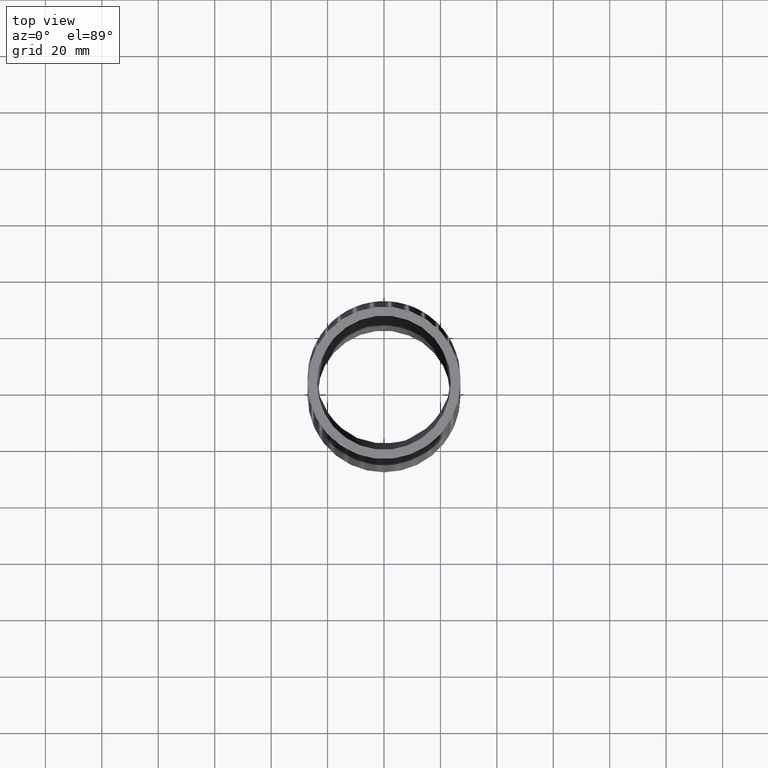
[diagram: clean part render]
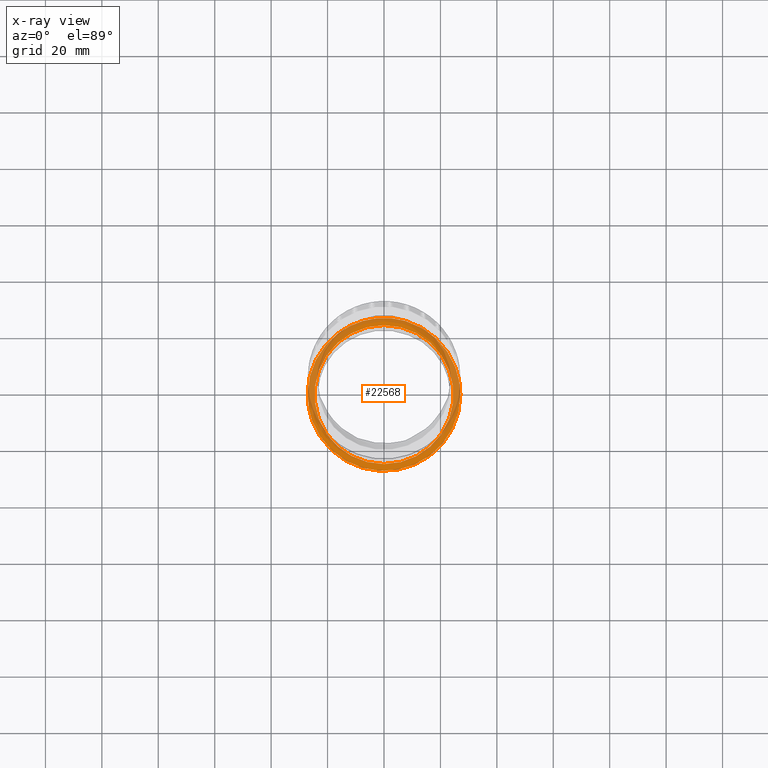
[diagram: x-ray — body ghosted, one internal face saturated and labeled with its STEP entity id]
A machine part, top view, then the same camera in x-ray: the body is ghosted and one INTERNAL B-rep face — a face not visible from any outside direction — is saturated and labeled: STEP entity #22568.
In plain terms, the highlighted planar face has unit normal (0, -0, 1).
Its self-contained STEP definition (entity closure, byte-faithful):
#1661 = B_SPLINE_CURVE_WITH_KNOTS ( 'NONE', 3,
 ( #1715, #1713, #1712, #1711, #1710, #1709, #1708, #1707, #1706, #1705, #1704, #1702, #1700, #1699, #1698, #1697, #1695, #1694, #1693, #1692, #1691, #1690, #1689, #1688, #1687, #1685 ),
 .UNSPECIFIED., .F., .F.,
 ( 4, 2, 2, 2, 2, 2, 2, 2, 2, 2, 2, 2, 4 ),
 ( 0.1345937247587071800, 0.1367667806220763400, 0.1389398364854454700, 0.1432859482121837900, 0.1454590040755529300, 0.1476320599389220900, 0.1519781716656603800, 0.1541512275290295200, 0.1563242833923986800, 0.1606703951191369400, 0.1628434509825061000, 0.1650165068458752400, 0.1693626185726135300 ),
 .UNSPECIFIED. ) ;
#1662 = CARTESIAN_POINT ( 'NONE',  ( 0.2942021162830115200, 1.023881841711950600, -9.262714008612654500 ) ) ;
#1685 = CARTESIAN_POINT ( 'NONE',  ( 1.065000000000000200, -0.002456861999197953000, -9.262714008612656300 ) ) ;
#1687 = CARTESIAN_POINT ( 'NONE',  ( 1.064999999999999300, 0.05539908746670275900, -9.262714008612674000 ) ) ;
#1688 = CARTESIAN_POINT ( 'NONE',  ( 1.060342751581643300, 0.1127639391957773600, -9.262714008612658000 ) ) ;
#1689 = CARTESIAN_POINT ( 'NONE',  ( 1.046451226837835400, 0.1980818997603101300, -9.262714008612656300 ) ) ;
#1690 = CARTESIAN_POINT ( 'NONE',  ( 1.040635323112068200, 0.2264989185426697400, -9.262714008612652700 ) ) ;
#1691 = CARTESIAN_POINT ( 'NONE',  ( 1.026822309547759300, 0.2823909090176692200, -9.262714008612656300 ) ) ;
#1692 = CARTESIAN_POINT ( 'NONE',  ( 1.018828454095150900, 0.3099044290535125600, -9.262714008612658000 ) ) ;
#1693 = CARTESIAN_POINT ( 'NONE',  ( 0.9916585098094383700, 0.3911768638349290000, -9.262714008612659800 ) ) ;
#1694 = CARTESIAN_POINT ( 'NONE',  ( 0.9693142940294945400, 0.4436757077518556100, -9.262714008612654500 ) ) ;
#1695 = CARTESIAN_POINT ( 'NONE',  ( 0.9293705993274212800, 0.5198675916140214100, -9.262714008612654500 ) ) ;
#1697 = CARTESIAN_POINT ( 'NONE',  ( 0.9149175160717117900, 0.5449327526267597800, -9.262714008612652700 ) ) ;
#1698 = CARTESIAN_POINT ( 'NONE',  ( 0.8840846455784061600, 0.5937041760904674400, -9.262714008612654500 ) ) ;
#1699 = CARTESIAN_POINT ( 'NONE',  ( 0.8677770295423946600, 0.6173160520611540300, -9.262714008612654500 ) ) ;
#1700 = CARTESIAN_POINT ( 'NONE',  ( 0.8162501487881249600, 0.6858905298127082600, -9.262714008612658000 ) ) ;
#1702 = CARTESIAN_POINT ( 'NONE',  ( 0.7784432471744107100, 0.7286062182954792200, -9.262714008612661600 ) ) ;
#1704 = CARTESIAN_POINT ( 'NONE',  ( 0.7165185169770069700, 0.7881519694021205100, -9.262714008612663400 ) ) ;
#1705 = CARTESIAN_POINT ( 'NONE',  ( 0.6949848738317168100, 0.8072578079710734900, -9.262714008612652700 ) ) ;
#1706 = CARTESIAN_POINT ( 'NONE',  ( 0.6501912301130023900, 0.8438397888233282200, -9.262714008612654500 ) ) ;
#1707 = CARTESIAN_POINT ( 'NONE',  ( 0.6272033438012178900, 0.8610962731117923800, -9.262714008612649200 ) ) ;
#1708 = CARTESIAN_POINT ( 'NONE',  ( 0.5565189076162809800, 0.9098539484646933600, -9.262714008612647400 ) ) ;
#1709 = CARTESIAN_POINT ( 'NONE',  ( 0.5071123457644635100, 0.9383622038515624400, -9.262714008612656300 ) ) ;
#1710 = CARTESIAN_POINT ( 'NONE',  ( 0.4295805629375034100, 0.9751353619512146400, -9.262714008612659800 ) ) ;
#1711 = CARTESIAN_POINT ( 'NONE',  ( 0.4031636175787708900, 0.9863901612865091400, -9.262714008612647400 ) ) ;
#1712 = CARTESIAN_POINT ( 'NONE',  ( 0.3491500197061444500, 1.006834986331055500, -9.262714008612649200 ) ) ;
#1713 = CARTESIAN_POINT ( 'NONE',  ( 0.3217402974460824000, 1.015946003062057300, -9.262714008612652700 ) ) ;
#1715 = CARTESIAN_POINT ( 'NONE',  ( 0.2942021162830115200, 1.023881841711950600, -9.262714008612654500 ) ) ;
#2029 = CARTESIAN_POINT ( 'NONE',  ( -1.065000000000000200, -0.002456861999197820700, -9.262714008612656300 ) ) ;
#2031 = B_SPLINE_CURVE_WITH_KNOTS ( 'NONE', 3,
 ( #2029, #2081, #2080, #2079, #2078, #2077, #2076, #2075, #2074, #2073, #2072, #2071, #2070, #2069, #2068, #2067, #2066, #2065, #2064, #2063, #2062, #2061, #2060, #2059, #2058, #2057 ),
 .UNSPECIFIED., .F., .F.,
 ( 4, 2, 2, 2, 2, 2, 2, 2, 2, 2, 2, 2, 4 ),
 ( 0.08469472598437159700, 0.08904628690213177400, 0.09122206736101186300, 0.09339784781989195200, 0.09774940873765213000, 0.09992518919653223300, 0.1021009696554123200, 0.1064525305731725000, 0.1086283110320525900, 0.1108040914909326800, 0.1151556524086928500, 0.1173314328675729400, 0.1195072133264530500 ),
 .UNSPECIFIED. ) ;
#2036 = CARTESIAN_POINT ( 'NONE',  ( -0.2942021162829624400, 1.023881841711964800, -9.262714008612654500 ) ) ;
#2042 = CARTESIAN_POINT ( 'NONE',  ( 0.7780465773346784100, -0.7326313545230158700, -9.262714008612654500 ) ) ;
#2043 = CARTESIAN_POINT ( 'NONE',  ( 0.8014704792178458700, -0.7067048382415650500, -9.262714008612654500 ) ) ;
#2044 = CARTESIAN_POINT ( 'NONE',  ( 0.8348561054997542000, -0.6658460733127025100, -9.262714008612652700 ) ) ;
#2045 = CARTESIAN_POINT ( 'NONE',  ( 0.8456611241909778300, -0.6519322186872305000, -9.262714008612650900 ) ) ;
#2046 = CARTESIAN_POINT ( 'NONE',  ( 0.8664581644788731400, -0.6237482699936780500, -9.262714008612650900 ) ) ;
#2047 = CARTESIAN_POINT ( 'NONE',  ( 0.8764769669614140800, -0.6094458451133557600, -9.262714008612654500 ) ) ;
#2048 = CARTESIAN_POINT ( 'NONE',  ( 0.9247023912038127000, -0.5368980949893051900, -9.262714008612656300 ) ) ;
#2049 = CARTESIAN_POINT ( 'NONE',  ( 0.9573565423037480000, -0.4755754295751243300, -9.262714008612645600 ) ) ;
#2050 = CARTESIAN_POINT ( 'NONE',  ( 0.9973713074486655300, -0.3786219586072365800, -9.262714008612645600 ) ) ;
#2051 = CARTESIAN_POINT ( 'NONE',  ( 1.009244063152145100, -0.3452994627229962200, -9.262714008612659800 ) ) ;
#2052 = CARTESIAN_POINT ( 'NONE',  ( 1.029466545330415300, -0.2782750243100373100, -9.262714008612658000 ) ) ;
#2053 = CARTESIAN_POINT ( 'NONE',  ( 1.037876147354732700, -0.2444731584930671900, -9.262714008612652700 ) ) ;
#2054 = CARTESIAN_POINT ( 'NONE',  ( 1.058113903578141700, -0.1422180032824658400, -9.262714008612654500 ) ) ;
#2055 = CARTESIAN_POINT ( 'NONE',  ( 1.065000000000000200, -0.07292349537567999200, -9.262714008612674000 ) ) ;
#2056 = CARTESIAN_POINT ( 'NONE',  ( 1.065000000000000200, -0.002456861999197953000, -9.262714008612656300 ) ) ;
#2057 = CARTESIAN_POINT ( 'NONE',  ( -0.2942021162829624400, 1.023881841711964800, -9.262714008612654500 ) ) ;
#2058 = CARTESIAN_POINT ( 'NONE',  ( -0.3218549538499315100, 1.015912961855898000, -9.262714008612659800 ) ) ;
#2059 = CARTESIAN_POINT ( 'NONE',  ( -0.3494314520143590500, 1.006734933085499100, -9.262714008612643800 ) ) ;
#2060 = CARTESIAN_POINT ( 'NONE',  ( -0.4033017766846078200, 0.9863313433048416200, -9.262714008612645600 ) ) ;
#2061 = CARTESIAN_POINT ( 'NONE',  ( -0.4296783199114214100, 0.9750917661898621500, -9.262714008612658000 ) ) ;
#2062 = CARTESIAN_POINT ( 'NONE',  ( -0.5071696539086258900, 0.9383294688202512600, -9.262714008612659800 ) ) ;
#2063 = CARTESIAN_POINT ( 'NONE',  ( -0.5566566283907659100, 0.9097826507791085800, -9.262714008612652700 ) ) ;
#2064 = CARTESIAN_POINT ( 'NONE',  ( -0.6275823012860581900, 0.8608229074516324800, -9.262714008612650900 ) ) ;
#2065 = CARTESIAN_POINT ( 'NONE',  ( -0.6507705089334500100, 0.8433901402654593300, -9.262714008612643800 ) ) ;
#2066 = CARTESIAN_POINT ( 'NONE',  ( -0.6954556697863514300, 0.8068493264945318900, -9.262714008612643800 ) ) ;
#2067 = CARTESIAN_POINT ( 'NONE',  ( -0.7169233538107665500, 0.7877820833268174300, -9.262714008612659800 ) ) ;
#2068 = CARTESIAN_POINT ( 'NONE',  ( -0.7787703454431049700, 0.7282523505375644300, -9.262714008612656300 ) ) ;
#2069 = CARTESIAN_POINT ( 'NONE',  ( -0.8166097190227648000, 0.6854765452096905900, -9.262714008612652700 ) ) ;
#2070 = CARTESIAN_POINT ( 'NONE',  ( -0.8682513126641963100, 0.6166519617672056000, -9.262714008612652700 ) ) ;
#2071 = CARTESIAN_POINT ( 'NONE',  ( -0.8846400169955961300, 0.5928791844301502000, -9.262714008612654500 ) ) ;
#2072 = CARTESIAN_POINT ( 'NONE',  ( -0.9155105450810249200, 0.5439391788029461800, -9.262714008612654500 ) ) ;
#2073 = CARTESIAN_POINT ( 'NONE',  ( -0.9298510905569312700, 0.5190054303958475700, -9.262714008612654500 ) ) ;
#2074 = CARTESIAN_POINT ( 'NONE',  ( -0.9696864102981454000, 0.4428543950388500500, -9.262714008612654500 ) ) ;
#2075 = CARTESIAN_POINT ( 'NONE',  ( -0.9920147647715094100, 0.3902957466923383500, -9.262714008612658000 ) ) ;
#2076 = CARTESIAN_POINT ( 'NONE',  ( -1.019174290901845700, 0.3087749810600533600, -9.262714008612658000 ) ) ;
#2077 = CARTESIAN_POINT ( 'NONE',  ( -1.027166982152622600, 0.2811521493448667100, -9.262714008612654500 ) ) ;
#2078 = CARTESIAN_POINT ( 'NONE',  ( -1.040969770457907100, 0.2249818935383351400, -9.262714008612654500 ) ) ;
#2079 = CARTESIAN_POINT ( 'NONE',  ( -1.046717560705370300, 0.1966611118904238200, -9.262714008612654500 ) ) ;
#2080 = CARTESIAN_POINT ( 'NONE',  ( -1.060443891870887400, 0.1116976574198784800, -9.262714008612654500 ) ) ;
#2081 = CARTESIAN_POINT ( 'NONE',  ( -1.064999999999999500, 0.05476456750031513700, -9.262714008612659800 ) ) ;
#2082 = B_SPLINE_CURVE_WITH_KNOTS ( 'NONE', 3,
 ( #2056, #2055, #2054, #2053, #2052, #2051, #2050, #2049, #2048, #2047, #2046, #2045, #2044, #2043, #2042, #2138, #2137, #2135, #2134, #2133, #2132, #2131, #2130, #2129, #2128, #2127, #2126, #2125, #2124, #2123, #2122, #2121, #2120, #2119, #2118, #2117, #2116, #2115, #2114, #2113, #2112, #2111, #2110, #2109, #2108, #2107, #2106, #2105, #2104, #2103, #2102, #2101, #2100, #2099, #2098, #2097, #2096, #2095, #2094, #2093, #2092 ),
 .UNSPECIFIED., .F., .F.,
 ( 4, 2, 2, 2, 2, 2, 2, 2, 2, 2, 2, 1, 2, 2, 2, 2, 2, 2, 2, 2, 2, 2, 2, 2, 2, 2, 2, 2, 2, 2, 4 ),
 ( 1.037950187097495500E-016, 0.005293420374023361800, 0.007940130561034991100, 0.01058684074804662000, 0.01588026112206987800, 0.01720361621557568400, 0.01852697130908149300, 0.02117368149609309300, 0.02646710187011629500, 0.02779045696362209700, 0.02911381205712789500, 0.03176052224413950000, 0.03440723243115110400, 0.03573058752465690200, 0.03705394261816270100, 0.04234736299218590200, 0.04499407317919751300, 0.04631742827270331200, 0.04764078336620911800, 0.05293420374023231900, 0.05425755883373812500, 0.05558091392724393000, 0.05822762411425552700, 0.06352104448827872200, 0.06616775467529034700, 0.06881446486230194400, 0.07146117504931355500, 0.07410788523632516600, 0.07940130561034837400, 0.08204801579735998600, 0.08469472598437159700 ),
 .UNSPECIFIED. ) ;
#2092 = CARTESIAN_POINT ( 'NONE',  ( -1.065000000000000200, -0.002456861999197820700, -9.262714008612656300 ) ) ;
#2093 = CARTESIAN_POINT ( 'NONE',  ( -1.064999999999999900, -0.03726012989178745200, -9.262714008612658000 ) ) ;
#2094 = CARTESIAN_POINT ( 'NONE',  ( -1.063307962536522900, -0.07217048070639116300, -9.262714008612652700 ) ) ;
#2095 = CARTESIAN_POINT ( 'NONE',  ( -1.056425755210337300, -0.1422125664638986500, -9.262714008612650900 ) ) ;
#2096 = CARTESIAN_POINT ( 'NONE',  ( -1.051268777061985300, -0.1769242187419672600, -9.262714008612645600 ) ) ;
#2097 = CARTESIAN_POINT ( 'NONE',  ( -1.030906851076818000, -0.2794433025312241800, -9.262714008612645600 ) ) ;
#2098 = CARTESIAN_POINT ( 'NONE',  ( -1.010826816630397500, -0.3459631815088036200, -9.262714008612652700 ) ) ;
#2099 = CARTESIAN_POINT ( 'NONE',  ( -0.9708254922117527400, -0.4429691652590988500, -9.262714008612650900 ) ) ;
#2100 = CARTESIAN_POINT ( 'NONE',  ( -0.9557468315869415100, -0.4749728083820231000, -9.262714008612652700 ) ) ;
#2101 = CARTESIAN_POINT ( 'NONE',  ( -0.9228380245508199800, -0.5367346768099362500, -9.262714008612652700 ) ) ;
#2102 = CARTESIAN_POINT ( 'NONE',  ( -0.9049690634382593400, -0.5666266751280171200, -9.262714008612654500 ) ) ;
#2103 = CARTESIAN_POINT ( 'NONE',  ( -0.8664589879880018100, -0.6244726228336574500, -9.262714008612654500 ) ) ;
#2104 = CARTESIAN_POINT ( 'NONE',  ( -0.8458177941215037100, -0.6524265166215772500, -9.262714008612661600 ) ) ;
#2105 = CARTESIAN_POINT ( 'NONE',  ( -0.8017395577747729000, -0.7063796895077824000, -9.262714008612658000 ) ) ;
#2106 = CARTESIAN_POINT ( 'NONE',  ( -0.7782631955487124800, -0.7324187632679173300, -9.262714008612649200 ) ) ;
#2107 = CARTESIAN_POINT ( 'NONE',  ( -0.7037276800259614200, -0.8072446434565987400, -9.262714008612652700 ) ) ;
#2108 = CARTESIAN_POINT ( 'NONE',  ( -0.6499482514427052900, -0.8514515231117668600, -9.262714008612654500 ) ) ;
#2109 = CARTESIAN_POINT ( 'NONE',  ( -0.5633666845533722400, -0.9095533873487473600, -9.262714008612652700 ) ) ;
#2110 = CARTESIAN_POINT ( 'NONE',  ( -0.5335135070157928100, -0.9275425323680721600, -9.262714008612654500 ) ) ;
#2111 = CARTESIAN_POINT ( 'NONE',  ( -0.4872068661670258500, -0.9524064287684390600, -9.262714008612652700 ) ) ;
#2112 = CARTESIAN_POINT ( 'NONE',  ( -0.4714738104669179400, -0.9603601272806985300, -9.262714008612649200 ) ) ;
#2113 = CARTESIAN_POINT ( 'NONE',  ( -0.4397082700802106300, -0.9754389920613689700, -9.262714008612652700 ) ) ;
#2114 = CARTESIAN_POINT ( 'NONE',  ( -0.4237005233106314600, -0.9825555101646731300, -9.262714008612656300 ) ) ;
#2115 = CARTESIAN_POINT ( 'NONE',  ( -0.3430488081238626300, -1.016063803451082000, -9.262714008612654500 ) ) ;
#2116 = CARTESIAN_POINT ( 'NONE',  ( -0.2765833883296081600, -1.036291881133750900, -9.262714008612656300 ) ) ;
#2117 = CARTESIAN_POINT ( 'NONE',  ( -0.1910809173202499500, -1.053385466942710700, -9.262714008612654500 ) ) ;
#2118 = CARTESIAN_POINT ( 'NONE',  ( -0.1738582977511545500, -1.056390918161653100, -9.262714008612654500 ) ) ;
#2119 = CARTESIAN_POINT ( 'NONE',  ( -0.1391645635325397500, -1.061560926065999900, -9.262714008612654500 ) ) ;
#2120 = CARTESIAN_POINT ( 'NONE',  ( -0.1216464605520833100, -1.063728868486831600, -9.262714008612656300 ) ) ;
#2121 = CARTESIAN_POINT ( 'NONE',  ( -0.06921903593886628800, -1.068897133201815100, -9.262714008612658000 ) ) ;
#2122 = CARTESIAN_POINT ( 'NONE',  ( -0.03435558332401998600, -1.070587572063825600, -9.262714008612652700 ) ) ;
#2123 = CARTESIAN_POINT ( 'NONE',  ( 0.06997793902181143100, -1.070546080977664300, -9.262714008612658000 ) ) ;
#2124 = CARTESIAN_POINT ( 'NONE',  ( 0.1391936347036969700, -1.063750343275565100, -9.262714008612663400 ) ) ;
#2125 = CARTESIAN_POINT ( 'NONE',  ( 0.2252760011455325600, -1.046551300743363800, -9.262714008612659800 ) ) ;
#2126 = CARTESIAN_POINT ( 'NONE',  ( 0.2424960911559667600, -1.042663443774931100, -9.262714008612659800 ) ) ;
#2127 = CARTESIAN_POINT ( 'NONE',  ( 0.2765158302168757600, -1.034090662383198700, -9.262714008612661600 ) ) ;
#2128 = CARTESIAN_POINT ( 'NONE',  ( 0.2933596559574699300, -1.029398364892686800, -9.262714008612654500 ) ) ;
#2129 = CARTESIAN_POINT ( 'NONE',  ( 0.3434016975302037800, -1.014125009393777000, -9.262714008612654500 ) ) ;
#2130 = CARTESIAN_POINT ( 'NONE',  ( 0.4088215629267695200, -0.9905756021460246900, -9.262714008612649200 ) ) ;
#2131 = CARTESIAN_POINT ( 'NONE',  ( 0.4716700422429556100, -0.9607402441706475200, -9.262714008612658000 ) ) ;
#2132 = CARTESIAN_POINT ( 'NONE',  ( 0.5178269894782652200, -0.9359694772314417500, -9.262714008612659800 ) ) ;
#2133 = CARTESIAN_POINT ( 'NONE',  ( 0.5330491128324893500, -0.9273128037285625100, -9.262714008612654500 ) ) ;
#2134 = CARTESIAN_POINT ( 'NONE',  ( 0.5631600936206557800, -0.9091847625895193000, -9.262714008612656300 ) ) ;
#2135 = CARTESIAN_POINT ( 'NONE',  ( 0.5780416721302300600, -0.8997140799183156500, -9.262714008612659800 ) ) ;
#2137 = CARTESIAN_POINT ( 'NONE',  ( 0.6507855682479468700, -0.8508548319732943700, -9.262714008612659800 ) ) ;
#2138 = CARTESIAN_POINT ( 'NONE',  ( 0.7043836644980990800, -0.8065958230939799200, -9.262714008612650900 ) ) ;
#4751 = DIRECTION ( 'NONE',  ( 0.0000000000000000000, -1.000000000000000000, 0.0000000000000000000 ) ) ;
#4752 = DIRECTION ( 'NONE',  ( 0.0000000000000000000, -1.734723475976807100E-018, 1.000000000000000000 ) ) ;
#4753 = AXIS2_PLACEMENT_3D ( 'NONE', #4757, #4752, #4751 ) ;
#4754 = CIRCLE ( 'NONE', #4753, 0.9700000000000003100 ) ;
#4757 = CARTESIAN_POINT ( 'NONE',  ( 0.0000000000000000000, -0.004877175149917749300, -9.262714008612654500 ) ) ;
#5372 = DIRECTION ( 'NONE',  ( 0.0000000000000000000, -1.000000000000000000, -1.734723475976807100E-018 ) ) ;
#5724 = DIRECTION ( 'NONE',  ( 0.0000000000000000000, -1.734723475976807100E-018, 1.000000000000000000 ) ) ;
#5725 = CARTESIAN_POINT ( 'NONE',  ( 0.0000000000000000000, 1.065122824850082600, -9.262714008612654500 ) ) ;
#5726 = AXIS2_PLACEMENT_3D ( 'NONE', #5725, #5724, #5372 ) ;
#5730 = PLANE ( 'NONE',  #5726 ) ;
#5749 = FACE_BOUND ( 'NONE', #22549, .T. ) ;
#5750 = FACE_OUTER_BOUND ( 'NONE', #22566, .T. ) ;
#5751 = DIRECTION ( 'NONE',  ( 0.0000000000000000000, -1.000000000000000000, 0.0000000000000000000 ) ) ;
#5752 = DIRECTION ( 'NONE',  ( 0.0000000000000000000, -1.734723475976807100E-018, 1.000000000000000000 ) ) ;
#5753 = CARTESIAN_POINT ( 'NONE',  ( 0.0000000000000000000, -0.004877175149917749300, -9.262714008612654500 ) ) ;
#5754 = AXIS2_PLACEMENT_3D ( 'NONE', #5753, #5752, #5751 ) ;
#5755 = CIRCLE ( 'NONE', #5754, 1.070000000000000300 ) ;
#9918 = EDGE_CURVE ( 'NONE', #10010, #23130, #1661, .T. ) ;
#10010 = VERTEX_POINT ( 'NONE', #1662 ) ;
#10441 = CARTESIAN_POINT ( 'NONE',  ( 1.065000000000000200, -0.002456861999197953000, -9.262714008612656300 ) ) ;
#10448 = CARTESIAN_POINT ( 'NONE',  ( -1.065000000000000200, -0.002456861999197820700, -9.262714008612656300 ) ) ;
#11251 = VERTEX_POINT ( 'NONE', #2036 ) ;
#11647 = EDGE_CURVE ( 'NONE', #23119, #11251, #2031, .T. ) ;
#11693 = EDGE_CURVE ( 'NONE', #23130, #23119, #2082, .T. ) ;
#19728 = CARTESIAN_POINT ( 'NONE',  ( 0.0000000000000000000, -0.9748771751499181200, -9.262714008612654500 ) ) ;
#19729 = DIRECTION ( 'NONE',  ( 0.0000000000000000000, -1.000000000000000000, 0.0000000000000000000 ) ) ;
#19730 = DIRECTION ( 'NONE',  ( 0.0000000000000000000, -1.734723475976807100E-018, 1.000000000000000000 ) ) ;
#19731 = AXIS2_PLACEMENT_3D ( 'NONE', #19739, #19730, #19729 ) ;
#19732 = CIRCLE ( 'NONE', #19731, 0.9700000000000003100 ) ;
#19739 = CARTESIAN_POINT ( 'NONE',  ( 0.0000000000000000000, -0.004877175149917749300, -9.262714008612654500 ) ) ;
#19742 = CARTESIAN_POINT ( 'NONE',  ( 1.187907395172932900E-016, 0.9651228248500824900, -9.262714008612654500 ) ) ;
#22476 = EDGE_CURVE ( 'NONE', #24491, #24493, #4754, .T. ) ;
#22539 = ORIENTED_EDGE ( 'NONE', *, *, #22476, .F. ) ;
#22547 = ORIENTED_EDGE ( 'NONE', *, *, #24492, .F. ) ;
#22549 = EDGE_LOOP ( 'NONE', ( #22547, #22539 ) ) ;
#22552 = ORIENTED_EDGE ( 'NONE', *, *, #9918, .F. ) ;
#22553 = ORIENTED_EDGE ( 'NONE', *, *, #11693, .F. ) ;
#22554 = ORIENTED_EDGE ( 'NONE', *, *, #11647, .F. ) ;
#22559 = EDGE_CURVE ( 'NONE', #10010, #11251, #5755, .T. ) ;
#22562 = ORIENTED_EDGE ( 'NONE', *, *, #22559, .T. ) ;
#22566 = EDGE_LOOP ( 'NONE', ( #22562, #22554, #22553, #22552 ) ) ;
#22568 = ADVANCED_FACE ( 'NONE', ( #5750, #5749 ), #5730, .T. ) ;
#23119 = VERTEX_POINT ( 'NONE', #10448 ) ;
#23130 = VERTEX_POINT ( 'NONE', #10441 ) ;
#24491 = VERTEX_POINT ( 'NONE', #19742 ) ;
#24492 = EDGE_CURVE ( 'NONE', #24493, #24491, #19732, .T. ) ;
#24493 = VERTEX_POINT ( 'NONE', #19728 ) ;